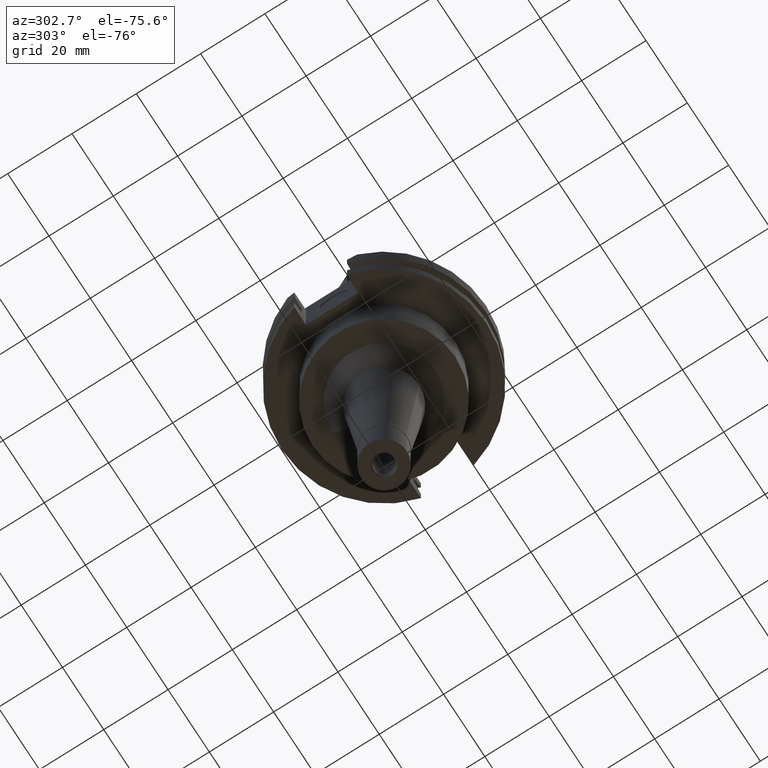
[diagram: clean part render]
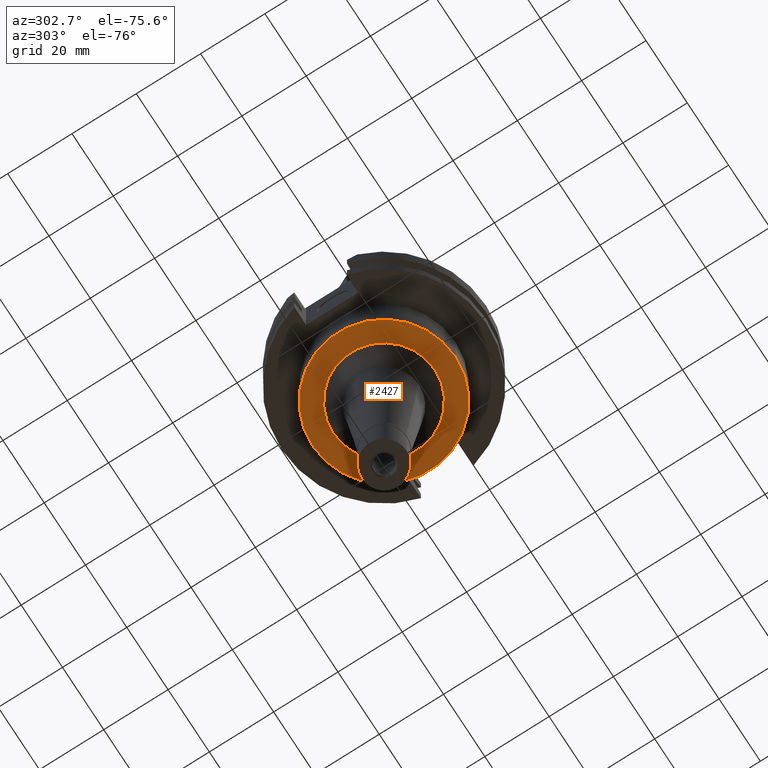
[diagram: same view with one face highlighted and labeled with its STEP entity id]
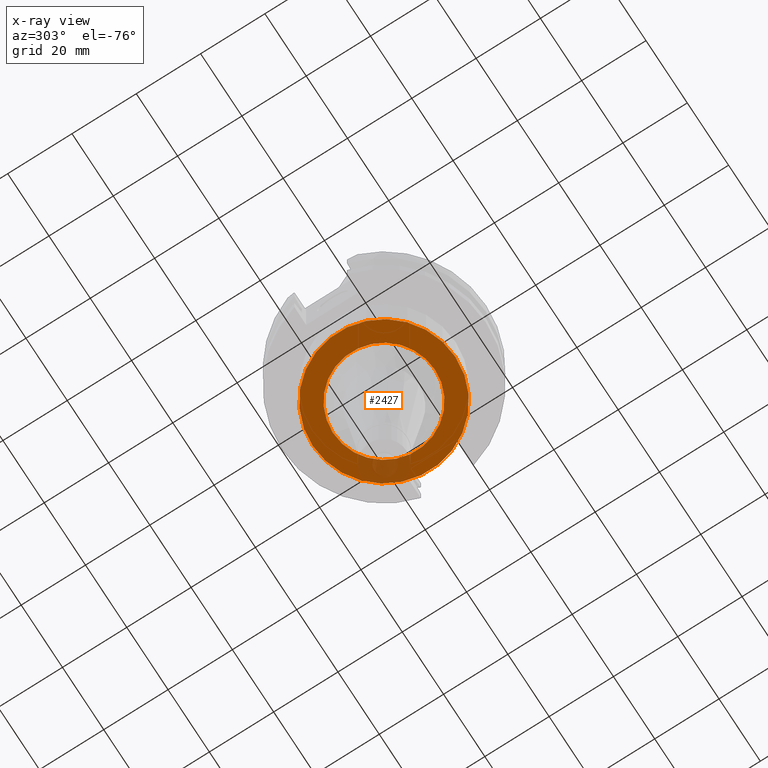
[diagram: x-ray of the same camera — body ghosted, the highlighted face saturated]
A machine part, auxiliary view. The second image highlights one B-rep face of the part: STEP entity #2427.
The next image is the same camera in x-ray: the body ghosted, the highlighted face saturated — about 12% of this face is hidden behind the body in this view.
In plain terms, the highlighted planar face has unit normal (0, 0, -1).
Its self-contained STEP definition (entity closure, byte-faithful):
#56 = VERTEX_POINT ( 'NONE', #107 ) ;
#80 = FACE_OUTER_BOUND ( 'NONE', #353, .T. ) ;
#104 = DIRECTION ( 'NONE',  ( 0.0000000000000000000, 1.000000000000000000, 0.0000000000000000000 ) ) ;
#107 = CARTESIAN_POINT ( 'NONE',  ( 0.0000000000000000000, -15.84075232878999806, -35.00000000000000000 ) ) ;
#124 = ORIENTED_EDGE ( 'NONE', *, *, #754, .F. ) ;
#296 = CARTESIAN_POINT ( 'NONE',  ( 0.0000000000000000000, 2.162022075384999775E-14, -35.00000000000000000 ) ) ;
#353 = EDGE_LOOP ( 'NONE', ( #124, #2140 ) ) ;
#551 = DIRECTION ( 'NONE',  ( 0.0000000000000000000, -1.000000000000000000, 0.0000000000000000000 ) ) ;
#580 = VERTEX_POINT ( 'NONE', #2528 ) ;
#645 = VERTEX_POINT ( 'NONE', #815 ) ;
#754 = EDGE_CURVE ( 'NONE', #645, #580, #866, .T. ) ;
#767 = CIRCLE ( 'NONE', #1775, 22.22500000000000142 ) ;
#815 = CARTESIAN_POINT ( 'NONE',  ( 0.0000000000000000000, 22.22500000000000142, -35.00000000000000000 ) ) ;
#866 = CIRCLE ( 'NONE', #2195, 22.22500000000000142 ) ;
#867 = CIRCLE ( 'NONE', #2661, 15.84075232878999806 ) ;
#882 = DIRECTION ( 'NONE',  ( 0.0000000000000000000, 0.0000000000000000000, -1.000000000000000000 ) ) ;
#912 = EDGE_CURVE ( 'NONE', #56, #2106, #1374, .T. ) ;
#928 = PLANE ( 'NONE',  #1129 ) ;
#1129 = AXIS2_PLACEMENT_3D ( 'NONE', #1688, #3146, #2878 ) ;
#1136 = ORIENTED_EDGE ( 'NONE', *, *, #912, .F. ) ;
#1254 = DIRECTION ( 'NONE',  ( 0.0000000000000000000, 0.0000000000000000000, 1.000000000000000000 ) ) ;
#1374 = CIRCLE ( 'NONE', #3036, 15.84075232878999806 ) ;
#1404 = DIRECTION ( 'NONE',  ( 0.0000000000000000000, 0.0000000000000000000, -1.000000000000000000 ) ) ;
#1596 = EDGE_CURVE ( 'NONE', #580, #645, #767, .T. ) ;
#1677 = EDGE_LOOP ( 'NONE', ( #2080, #1136 ) ) ;
#1688 = CARTESIAN_POINT ( 'NONE',  ( 0.0000000000000000000, 0.0000000000000000000, -35.00000000000000000 ) ) ;
#1694 = EDGE_CURVE ( 'NONE', #2106, #56, #867, .T. ) ;
#1775 = AXIS2_PLACEMENT_3D ( 'NONE', #1978, #1254, #551 ) ;
#1978 = CARTESIAN_POINT ( 'NONE',  ( 0.0000000000000000000, 2.162022075384999775E-14, -35.00000000000000000 ) ) ;
#2080 = ORIENTED_EDGE ( 'NONE', *, *, #1694, .F. ) ;
#2091 = DIRECTION ( 'NONE',  ( 0.0000000000000000000, -1.000000000000000000, 0.0000000000000000000 ) ) ;
#2106 = VERTEX_POINT ( 'NONE', #2256 ) ;
#2108 = CARTESIAN_POINT ( 'NONE',  ( 0.0000000000000000000, 0.0000000000000000000, -35.00000000000000000 ) ) ;
#2140 = ORIENTED_EDGE ( 'NONE', *, *, #1596, .F. ) ;
#2195 = AXIS2_PLACEMENT_3D ( 'NONE', #296, #2567, #104 ) ;
#2256 = CARTESIAN_POINT ( 'NONE',  ( 0.0000000000000000000, 15.84075232878999806, -35.00000000000000000 ) ) ;
#2427 = ADVANCED_FACE ( 'NONE', ( #80, #3164 ), #928, .T. ) ;
#2528 = CARTESIAN_POINT ( 'NONE',  ( 0.0000000000000000000, -22.22500000000000142, -35.00000000000000000 ) ) ;
#2567 = DIRECTION ( 'NONE',  ( 0.0000000000000000000, 0.0000000000000000000, 1.000000000000000000 ) ) ;
#2579 = CARTESIAN_POINT ( 'NONE',  ( 0.0000000000000000000, 0.0000000000000000000, -35.00000000000000000 ) ) ;
#2661 = AXIS2_PLACEMENT_3D ( 'NONE', #2579, #882, #2828 ) ;
#2828 = DIRECTION ( 'NONE',  ( 0.0000000000000000000, 1.000000000000000000, 0.0000000000000000000 ) ) ;
#2878 = DIRECTION ( 'NONE',  ( 0.0000000000000000000, -1.000000000000000000, 0.0000000000000000000 ) ) ;
#3036 = AXIS2_PLACEMENT_3D ( 'NONE', #2108, #1404, #2091 ) ;
#3146 = DIRECTION ( 'NONE',  ( 0.0000000000000000000, 0.0000000000000000000, -1.000000000000000000 ) ) ;
#3164 = FACE_BOUND ( 'NONE', #1677, .T. ) ;